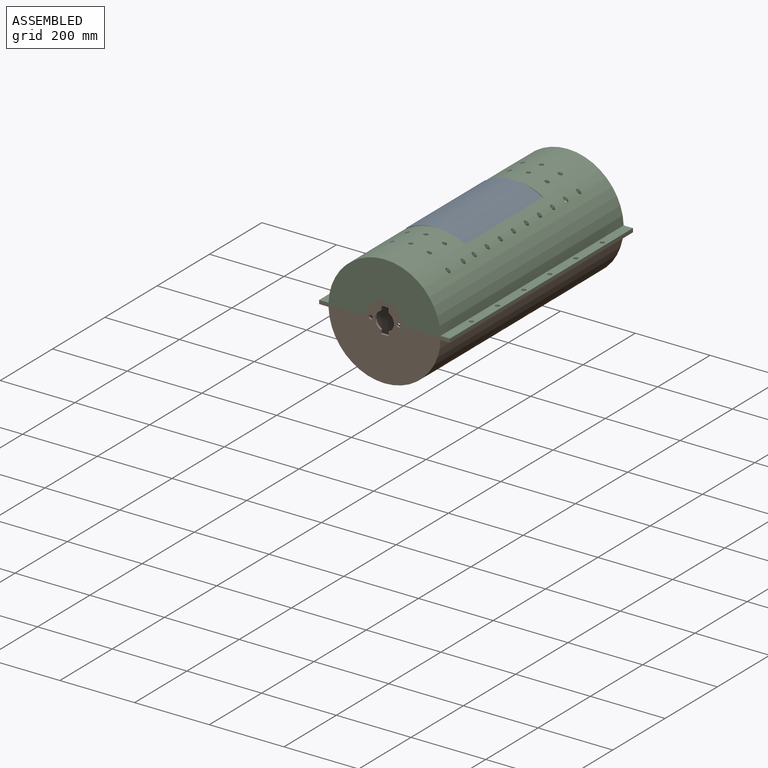
[diagram: assembled view]
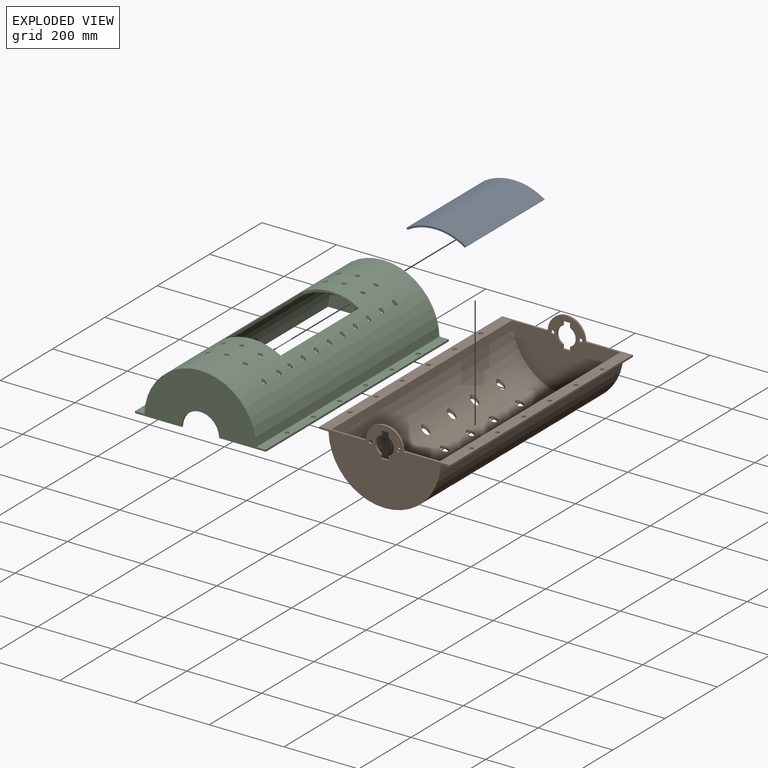
[diagram: exploded view]
GUIDED TOUR — MATED ASSEMBLY (Onshape document 8fc207bb77f288339ac32496, AutoMate assembly 8fc207bb77f288339ac32496_ca5e0ae2472331b184e13861_5e219c9798a006317e73f530_default)

This assembly has 3 components, labeled P0..P2 below (a component is one placed occurrence of a part; the same part can appear more than once), held together by 2 mates. A mate is a constraint between two components; its type names the relative motion it leaves free:
  PARALLEL — keeps the two listed directions parallel.
Axis/direction vectors are unit vectors and 'through' points are millimeter coordinates, both in the assembly's world frame.

MATES
  1. PARALLEL "Parallel 2": P0 <-> P2, direction (0.000, 1.000, 0.000) through (-39.52, -130.71, 75.05) mm
  2. PARALLEL "Parallel 1": P2 <-> P1, direction (0.000, 0.000, -1.000) through (-271.68, -130.71, -46.89) mm

ASSEMBLY ORDER
  1. P0 — the base component [order verified]
  2. P2 [order verified]
  3. P1 [order verified]
Order-tag legend:
  [order verified] — this step's position reverses a verified removal order: the component was checked to insert without passing through the ones already placed.

Of the 3 components, 3 carry the full construction recipe — the FeatureScript program that regenerates the part's solid from scratch; the rest are supplied as boundary geometry only.
Each toured component is shown spotlighted twice — in the assembled view, then in the exploded view, where a leader line traces a displaced component back to its assembled socket (saturated green if recipe-attached, orange if geometry-only; every other component desaturated gray) — followed by its recipe or geometry summary and the mates that hold it.
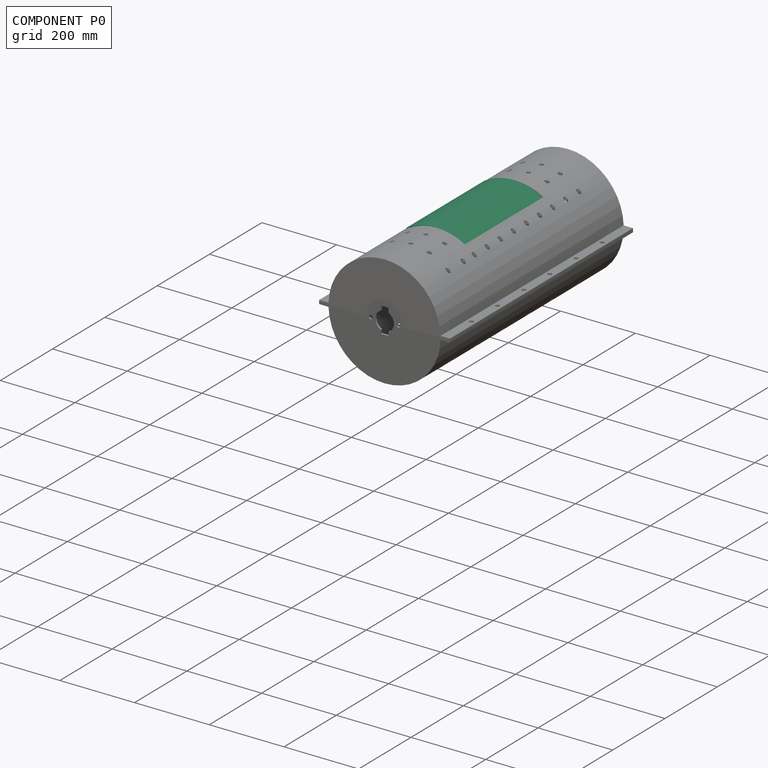
[diagram: component P0 — assembled]
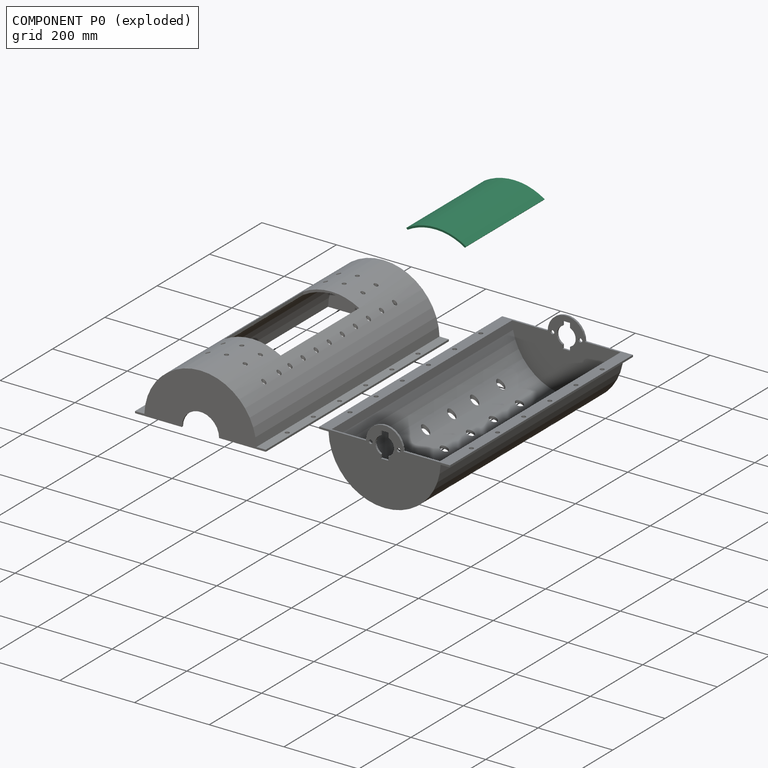
[diagram: component P0 — exploded]
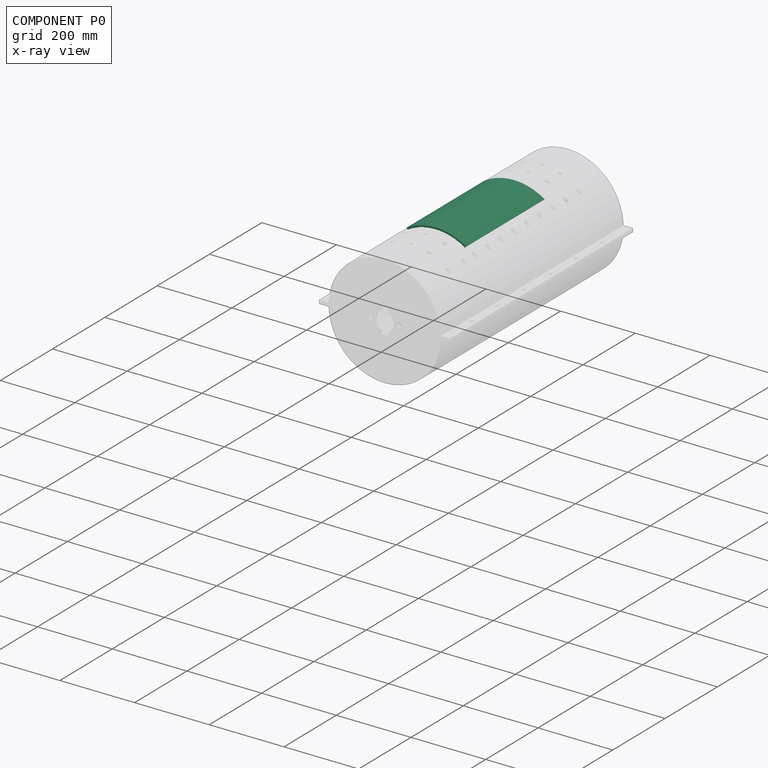
[diagram: component P0 — x-ray view]
COMPONENT P0 — recipe-attached (CADFS 00328720, mesh-verified: the recipe's output STEP matches this component's geometry to below the mesh-comparison resolution (tessellation chordal tolerance ~0.512 mm)).
Held by: PARALLEL mate "Parallel 2" to P2.
Construction recipe (FeatureScript — the CAD program that rebuilds this solid; sketch coordinates are in the units given by the * unit suffixes, e.g. mm):

FeatureScript 1511;
import(path : "onshape/std/geometry.fs", version : "1511.0");
import(path : "onshape/std/common.fs", version : "1511.0");
const mm = millimeter;
const VERTEX = EntityType.VERTEX;
const EDGE = EntityType.EDGE;
const FACE = EntityType.FACE;
const BODY = EntityType.BODY;
function v(x, y){return vector(x, y);}
function OD(order){return orderDisambiguation(order);}
function OSD(set){return originalSetDisambiguation(set);}
function TD(topology){return topologyDisambiguation(topology);}
function TDD(query){return trueDependencyDisambiguation(query);}
function sQuery(a, b, c) {return sketchEntityQuery(a, b, c);}

annotation { "Feature Type Name" : "Feature", "Feature Type Description" : "" }
export const myFeature = defineFeature(function(context is Context, id is Id, definition is map)
    precondition{}
    {
        {
            var Q0;
            Q0=qCreatedBy(makeId("Front.planeOp"),FACE);
            var sketch = newSketch(context, id + "F0", { "sketchPlane" : qUnion([Q0])});
            skArc(sketch, "E0", {"start": v(82.27, 125.43) * mm, "mid": v(2.46, 149.98) * mm, "end": v(-78.11, 128.06) * mm});
            skArc(sketch, "E1", {"start": v(78.6, 121.85) * mm, "mid": v(2.12, 144.98) * mm, "end": v(-75, 124.1) * mm});
            skLineSegment(sketch, "E2", {"start": v(78.6, 121.85) * mm, "end": v(82.27, 125.43) * mm});
            skLineSegment(sketch, "E3", {"start": v(-75, 124.1) * mm, "end": v(-78.11, 128.06) * mm});
            skSolve(sketch);
        }
        {
            var Q0;
            Q0 = qSketchRegion(id + "F0", true);
            extrude(context, id + "F1", {"entities" : qUnion([Q0]), "depth" : 300 * mm});
        }
    });
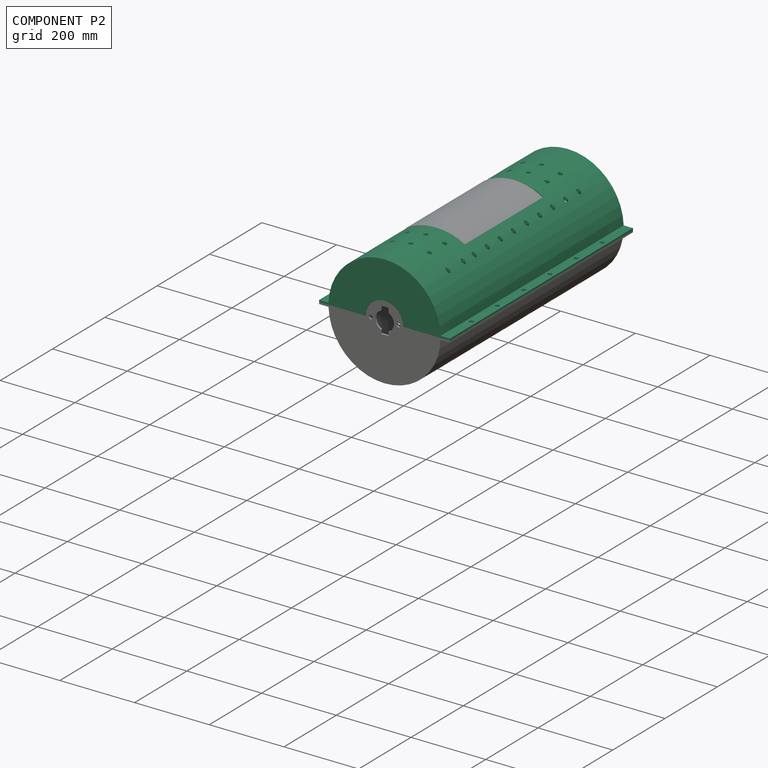
[diagram: component P2 — assembled]
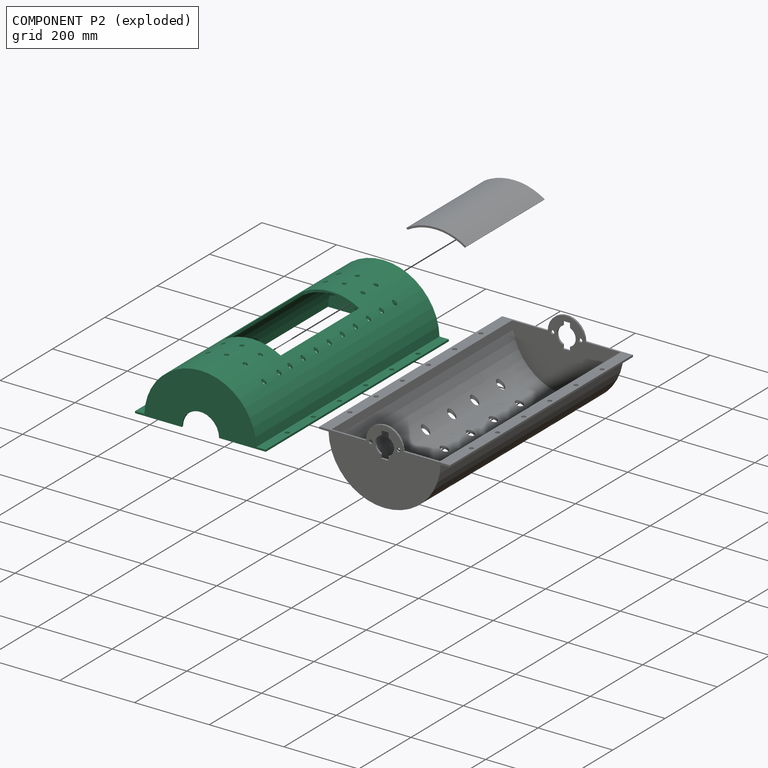
[diagram: component P2 — exploded]
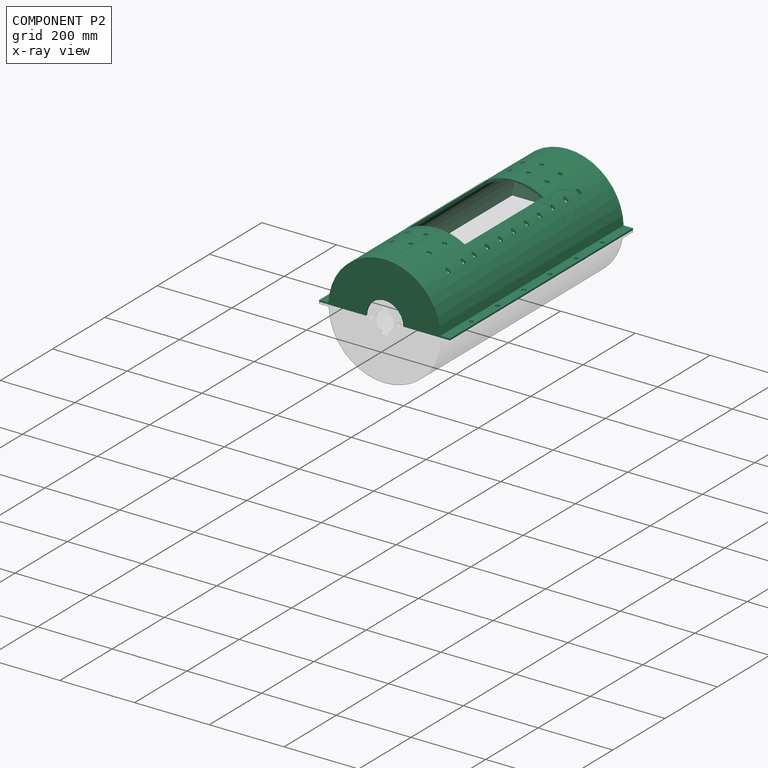
[diagram: component P2 — x-ray view]
COMPONENT P2 — recipe-attached (CADFS 00328721, mesh-verified: the recipe's output STEP matches this component's geometry to below the mesh-comparison resolution (tessellation chordal tolerance ~1.2 mm)).
Held by: PARALLEL mate "Parallel 2" to P0; PARALLEL mate "Parallel 1" to P1.
Construction recipe (FeatureScript — the CAD program that rebuilds this solid; sketch coordinates are in the units given by the * unit suffixes, e.g. mm):

FeatureScript 1511;
import(path : "onshape/std/geometry.fs", version : "1511.0");
import(path : "onshape/std/common.fs", version : "1511.0");
const mm = millimeter;
const VERTEX = EntityType.VERTEX;
const EDGE = EntityType.EDGE;
const FACE = EntityType.FACE;
const BODY = EntityType.BODY;
function v(x, y){return vector(x, y);}
function OD(order){return orderDisambiguation(order);}
function OSD(set){return originalSetDisambiguation(set);}
function TD(topology){return topologyDisambiguation(topology);}
function TDD(query){return trueDependencyDisambiguation(query);}
function sQuery(a, b, c) {return sketchEntityQuery(a, b, c);}

annotation { "Feature Type Name" : "Feature", "Feature Type Description" : "" }
export const myFeature = defineFeature(function(context is Context, id is Id, definition is map)
    precondition{}
    {
        {
            var Q0;
            Q0=qCreatedBy(makeId("Front.planeOp"),FACE);
            var sketch = newSketch(context, id + "F0", { "sketchPlane" : qUnion([Q0])});
            skLineSegment(sketch, "E0.bottom", {"start": v(150, -75) * mm, "end": v(-150, -75) * mm});
            skLineSegment(sketch, "E0.top", {"start": v(150, 75) * mm, "end": v(50, 75) * mm});
            skLineSegment(sketch, "E0.left", {"start": v(150, -75) * mm, "end": v(150, 70) * mm});
            skLineSegment(sketch, "E0.right", {"start": v(-150, -75) * mm, "end": v(-150, 70) * mm});
            skPoint(sketch, "E0.middle", {"position": v(0, 0) * mm});
            skLineSegment(sketch, "E1", {"start": v(-150, 75) * mm, "end": v(-175, 75) * mm});
            skLineSegment(sketch, "E2", {"start": v(-175, 75) * mm, "end": v(-175, 70) * mm});
            skLineSegment(sketch, "E3", {"start": v(-175, 70) * mm, "end": v(-150, 70) * mm});
            skLineSegment(sketch, "E4", {"start": v(150, 75) * mm, "end": v(175, 75) * mm});
            skLineSegment(sketch, "E5", {"start": v(175, 75) * mm, "end": v(175, 70) * mm});
            skLineSegment(sketch, "E6", {"start": v(175, 70) * mm, "end": v(150, 70) * mm});
            skLineSegment(sketch, "E7.trimOffspring", {"start": v(-50, 75) * mm, "end": v(-150, 75) * mm});
            skPoint(sketch, "E8.center.orphan", {"position": v(0, 75) * mm});
            skLineSegment(sketch, "E9", {"start": v(-50, 75) * mm, "end": v(50, 75) * mm});
            skSolve(sketch);
        }
        {
            var Q0;
            Q0=makeQuery(id+"F0.imprint","IMPRINT",FACE,{"disambiguationData":[TD([[makeQuery(id+"F0.imprint","IMPRINT",EDGE,{"derivedFrom":sQuery(id+"F0.wireOp",EDGE,"E0.bottom")}),-1.0]])]});
            extrude(context, id + "F1", {"entities" : qUnion([Q0]), "depth" : 700 * mm});
        }
        {
            var Q0;
            Q0=makeQuery(id+"F1.opExtrude","SWEPT_FACE",FACE,{"disambiguationData":[OSD([sQuery(id+"F0.wireOp",EDGE,"E0.top"),sQuery(id+"F0.wireOp",EDGE,"E1"),sQuery(id+"F0.wireOp",EDGE,"E4"),sQuery(id+"F0.wireOp",EDGE,"E7.trimOffspring"),sQuery(id+"F0.wireOp",EDGE,"E9")])]});
            var sketch = newSketch(context, id + "F2", { "sketchPlane" : qUnion([Q0])});
            skLineSegment(sketch, "E10.bottom", {"start": v(145, -695) * mm, "end": v(-145, -695) * mm});
            skLineSegment(sketch, "E10.top", {"start": v(145, -5) * mm, "end": v(-145, -5) * mm});
            skLineSegment(sketch, "E10.left", {"start": v(145, -695) * mm, "end": v(145, -5) * mm});
            skLineSegment(sketch, "E10.right", {"start": v(-145, -695) * mm, "end": v(-145, -5) * mm});
            skPoint(sketch, "E10.middle", {"position": v(0, -350) * mm});
            skPoint(sketch, "E10.middle.positionSnap0", {"position": v(175, -350) * mm});
            skPoint(sketch, "E10.middle.positionSnap1", {"position": v(0, 0) * mm});
            skPoint(sketch, "E10.centerSnap0", {"position": v(175, -350) * mm});
            skPoint(sketch, "E10.centerSnap1", {"position": v(0, 0) * mm});
            skSolve(sketch);
        }
        {
            var Q0;
            Q0=makeQuery(id+"F2.imprint","IMPRINT",FACE,{"disambiguationData":[TD([[makeQuery(id+"F2.imprint","IMPRINT",EDGE,{"derivedFrom":sQuery(id+"F2.wireOp",EDGE,"E10.bottom")}),-1.0]])]});
            extrude(context, id + "F3", {"entities" : qUnion([Q0]), "operationType" : NewBodyOperationType.REMOVE, "oppositeDirection" : true, "depth" : 145 * mm});
        }
        {
            var Q0;
            Q0=makeQuery(id+"F1.opExtrude","SWEPT_FACE",FACE,{"disambiguationData":[OSD([sQuery(id+"F0.wireOp",EDGE,"E0.bottom")])]});
            var sketch = newSketch(context, id + "F4", { "sketchPlane" : qUnion([Q0])});
            skLineSegment(sketch, "E11.bottom", {"start": v(75, 500) * mm, "end": v(-75, 500) * mm});
            skLineSegment(sketch, "E11.top", {"start": v(75, 200) * mm, "end": v(-75, 200) * mm});
            skLineSegment(sketch, "E11.left", {"start": v(75, 500) * mm, "end": v(75, 200) * mm});
            skLineSegment(sketch, "E11.right", {"start": v(-75, 500) * mm, "end": v(-75, 200) * mm});
            skPoint(sketch, "E11.middle", {"position": v(0, 350) * mm});
            skPoint(sketch, "E11.middle.positionSnap0", {"position": v(-150, 350) * mm});
            skPoint(sketch, "E11.centerSnap0", {"position": v(-150, 350) * mm});
            skSolve(sketch);
        }
        {
            var Q0;
            Q0=makeQuery(id+"F4.imprint","IMPRINT",FACE,{"disambiguationData":[TD([[makeQuery(id+"F4.imprint","IMPRINT",EDGE,{"derivedFrom":sQuery(id+"F4.wireOp",EDGE,"E11.bottom")}),1.0]])]});
            extrude(context, id + "F5", {"entities" : qUnion([Q0]), "operationType" : NewBodyOperationType.REMOVE, "oppositeDirection" : true, "depth" : 25 * mm});
        }
        {
            var Q0;
            Q0=makeQuery(id+"F1.opExtrude","SWEPT_FACE",FACE,{"disambiguationData":[OSD([sQuery(id+"F0.wireOp",EDGE,"E0.bottom")])]});
            var sketch = newSketch(context, id + "F6", { "sketchPlane" : qUnion([Q0])});
            skCircle(sketch, "E12", {"center": v(-100, 600) * mm, "radius": 10 * mm});
            skCircle(sketch, "E13", {"center": v(-50, 600) * mm, "radius": 10 * mm});
            skCircle(sketch, "E14", {"center": v(0, 600) * mm, "radius": 10 * mm});
            skCircle(sketch, "E15", {"center": v(50, 600) * mm, "radius": 10 * mm});
            skCircle(sketch, "E16", {"center": v(100, 600) * mm, "radius": 10 * mm});
            skCircle(sketch, "E17", {"center": v(-100, 500) * mm, "radius": 10 * mm});
            skCircle(sketch, "E18", {"center": v(100, 500) * mm, "radius": 10 * mm});
            skCircle(sketch, "E19", {"center": v(-50, 541.91) * mm, "radius": 10 * mm});
            skCircle(sketch, "E20", {"center": v(0, 541.91) * mm, "radius": 10 * mm});
            skCircle(sketch, "E21", {"center": v(50, 541.91) * mm, "radius": 10 * mm});
            skCircle(sketch, "E22", {"center": v(100, 541.91) * mm, "radius": 10 * mm});
            skCircle(sketch, "E23", {"center": v(-100, 541.91) * mm, "radius": 10 * mm});
            skCircle(sketch, "E24", {"center": v(100, 450) * mm, "radius": 10 * mm});
            skCircle(sketch, "E25", {"center": v(100, 400) * mm, "radius": 10 * mm});
            skCircle(sketch, "E26", {"center": v(100, 350) * mm, "radius": 10 * mm});
            skCircle(sketch, "E27", {"center": v(100, 300) * mm, "radius": 10 * mm});
            skPoint(sketch, "E28.center.orphan", {"position": v(100, 250) * mm});
            skCircle(sketch, "E29", {"center": v(100, 250) * mm, "radius": 10 * mm});
            skCircle(sketch, "E30", {"center": v(-100, 450) * mm, "radius": 10 * mm});
            skCircle(sketch, "E31", {"center": v(-100, 400) * mm, "radius": 10 * mm});
            skCircle(sketch, "E32", {"center": v(-100, 350) * mm, "radius": 10 * mm});
            skPoint(sketch, "E32.centerSnap0", {"position": v(-75, 350) * mm});
            skCircle(sketch, "E33", {"center": v(-100, 300) * mm, "radius": 10 * mm});
            skCircle(sketch, "E34", {"center": v(-100, 250) * mm, "radius": 10 * mm});
            skCircle(sketch, "E35", {"center": v(-100, 200) * mm, "radius": 10 * mm});
            skCircle(sketch, "E36", {"center": v(100, 200) * mm, "radius": 10 * mm});
            skCircle(sketch, "E37", {"center": v(-100, 150) * mm, "radius": 10 * mm});
            skCircle(sketch, "E38", {"center": v(-50, 150) * mm, "radius": 10 * mm});
            skCircle(sketch, "E39", {"center": v(0, 150) * mm, "radius": 10 * mm});
            skPoint(sketch, "E39.centerSnap0", {"position": v(0, 200) * mm});
            skCircle(sketch, "E40", {"center": v(50, 150) * mm, "radius": 10 * mm});
            skCircle(sketch, "E41", {"center": v(100, 150) * mm, "radius": 10 * mm});
            skCircle(sketch, "E42", {"center": v(-100, 100) * mm, "radius": 10 * mm});
            skCircle(sketch, "E43", {"center": v(-50, 100) * mm, "radius": 10 * mm});
            skCircle(sketch, "E44", {"center": v(0, 100) * mm, "radius": 10 * mm});
            skCircle(sketch, "E45", {"center": v(50, 100) * mm, "radius": 10 * mm});
            skCircle(sketch, "E46", {"center": v(100, 100) * mm, "radius": 10 * mm});
            skSolve(sketch);
        }
        {
            var Q0;
            Q0=sQuery(id+"F6.wireOp",VERTEX,"E12.center");
            var Q1;
            Q1=sQuery(id+"F6.wireOp",VERTEX,"E13.center");
            var Q2;
            Q2=sQuery(id+"F6.wireOp",VERTEX,"E14.center");
            var Q3;
            Q3=sQuery(id+"F6.wireOp",VERTEX,"E15.center");
            var Q4;
            Q4=sQuery(id+"F6.wireOp",VERTEX,"E16.center");
            var Q5;
            Q5=sQuery(id+"F6.wireOp",VERTEX,"E22.center");
            var Q6;
            Q6=sQuery(id+"F6.wireOp",VERTEX,"E21.center");
            var Q7;
            Q7=sQuery(id+"F6.wireOp",VERTEX,"E20.center");
            var Q8;
            Q8=sQuery(id+"F6.wireOp",VERTEX,"E19.center");
            var Q9;
            Q9=sQuery(id+"F6.wireOp",VERTEX,"E23.center");
            var Q10;
            Q10=sQuery(id+"F6.wireOp",VERTEX,"E17.center");
            var Q11;
            Q11=sQuery(id+"F6.wireOp",VERTEX,"E30.center");
            var Q12;
            Q12=sQuery(id+"F6.wireOp",VERTEX,"E31.center");
            var Q13;
            Q13=sQuery(id+"F6.wireOp",VERTEX,"E32.center");
            var Q14;
            Q14=sQuery(id+"F6.wireOp",VERTEX,"E33.center");
            var Q15;
            Q15=sQuery(id+"F6.wireOp",VERTEX,"E34.center");
            var Q16;
            Q16=sQuery(id+"F6.wireOp",VERTEX,"E35.center");
            var Q17;
            Q17=sQuery(id+"F6.wireOp",VERTEX,"E36.center");
            var Q18;
            Q18=sQuery(id+"F6.wireOp",VERTEX,"E28.center.orphan");
            var Q19;
            Q19=sQuery(id+"F6.wireOp",VERTEX,"E27.center");
            var Q20;
            Q20=sQuery(id+"F6.wireOp",VERTEX,"E26.center");
            var Q21;
            Q21=sQuery(id+"F6.wireOp",VERTEX,"E25.center");
            var Q22;
            Q22=sQuery(id+"F6.wireOp",VERTEX,"E24.center");
            var Q23;
            Q23=sQuery(id+"F6.wireOp",VERTEX,"E18.center");
            var Q24;
            Q24=sQuery(id+"F6.wireOp",VERTEX,"E41.center");
            var Q25;
            Q25=sQuery(id+"F6.wireOp",VERTEX,"E40.center");
            var Q26;
            Q26=sQuery(id+"F6.wireOp",VERTEX,"E39.center");
            var Q27;
            Q27=sQuery(id+"F6.wireOp",VERTEX,"E38.center");
            var Q28;
            Q28=sQuery(id+"F6.wireOp",VERTEX,"E37.center");
            var Q29;
            Q29=sQuery(id+"F6.wireOp",VERTEX,"E42.center");
            var Q30;
            Q30=sQuery(id+"F6.wireOp",VERTEX,"E43.center");
            var Q31;
            Q31=sQuery(id+"F6.wireOp",VERTEX,"E44.center");
            var Q32;
            Q32=sQuery(id+"F6.wireOp",VERTEX,"E45.center");
            var Q33;
            Q33=sQuery(id+"F6.wireOp",VERTEX,"E46.center");
            var Q34;
            Q34=makeQuery(id+"F1.opExtrude","SWEPT_BODY",BODY,{"disambiguationData":[OSD([sQuery(id+"F0.wireOp",EDGE,"E0.bottom"),sQuery(id+"F0.wireOp",EDGE,"E0.top"),sQuery(id+"F0.wireOp",EDGE,"E0.left"),sQuery(id+"F0.wireOp",EDGE,"E0.right"),sQuery(id+"F0.wireOp",EDGE,"E1"),sQuery(id+"F0.wireOp",EDGE,"E2"),sQuery(id+"F0.wireOp",EDGE,"E3"),sQuery(id+"F0.wireOp",EDGE,"E4"),sQuery(id+"F0.wireOp",EDGE,"E5"),sQuery(id+"F0.wireOp",EDGE,"E6"),sQuery(id+"F0.wireOp",EDGE,"E7.trimOffspring"),sQuery(id+"F0.wireOp",EDGE,"E9")])]});
            hole(context, id + "F7", {"style" : HoleStyle.SIMPLE, "endStyle" : HoleEndStyle.THROUGH, "standardTappedOrClearance" : lookupTablePath({ "standard" : "ISO", "fit" : "Normal", "size" : "M10", "type" : "Clearance" }), "standardBlindInLast" : lookupTablePath({ "fit" : "Standard", "standard" : "ISO", "size" : "M10", "type" : "Clearance" }), "holeDiameter" : 11 * mm, "isTappedThrough" : true, "tappedDepth" : 14 * mm, "tapClearance" : 3, "locations" : qUnion([Q0, Q1, Q2, Q3, Q4, Q5, Q6, Q7, Q8, Q9, Q10, Q11, Q12, Q13, Q14, Q15, Q16, Q17, Q18, Q19, Q20, Q21, Q22, Q23, Q24, Q25, Q26, Q27, Q28, Q29, Q30, Q31, Q32, Q33]), "scope" : qUnion([Q34])});
        }
        {
            var Q0;
            Q0=makeQuery(id+"F1.opExtrude","SWEPT_FACE",FACE,{"disambiguationData":[OSD([sQuery(id+"F0.wireOp",EDGE,"E0.top"),sQuery(id+"F0.wireOp",EDGE,"E1"),sQuery(id+"F0.wireOp",EDGE,"E4"),sQuery(id+"F0.wireOp",EDGE,"E7.trimOffspring"),sQuery(id+"F0.wireOp",EDGE,"E9")])]});
            var sketch = newSketch(context, id + "F8", { "sketchPlane" : qUnion([Q0])});
            skCircle(sketch, "E47", {"center": v(162.5, -100) * mm, "radius": 5 * mm});
            skCircle(sketch, "E48", {"center": v(162.5, -200) * mm, "radius": 5 * mm});
            skCircle(sketch, "E49", {"center": v(162.5, -300) * mm, "radius": 5 * mm});
            skCircle(sketch, "E50", {"center": v(162.5, -400) * mm, "radius": 5 * mm});
            skCircle(sketch, "E51", {"center": v(162.5, -500) * mm, "radius": 5 * mm});
            skCircle(sketch, "E52", {"center": v(162.5, -600) * mm, "radius": 5 * mm});
            skSolve(sketch);
        }
        {
            var Q0;
            Q0=sQuery(id+"F8.wireOp",VERTEX,"E47.center");
            var Q1;
            Q1=sQuery(id+"F8.wireOp",VERTEX,"E48.center");
            var Q2;
            Q2=sQuery(id+"F8.wireOp",VERTEX,"E49.center");
            var Q3;
            Q3=sQuery(id+"F8.wireOp",VERTEX,"E50.center");
            var Q4;
            Q4=sQuery(id+"F8.wireOp",VERTEX,"E51.center");
            var Q5;
            Q5=sQuery(id+"F8.wireOp",VERTEX,"E52.center");
            var Q6;
            Q6=makeQuery(id+"F1.opExtrude","SWEPT_BODY",BODY,{"disambiguationData":[OSD([sQuery(id+"F0.wireOp",EDGE,"E0.bottom"),sQuery(id+"F0.wireOp",EDGE,"E0.top"),sQuery(id+"F0.wireOp",EDGE,"E0.left"),sQuery(id+"F0.wireOp",EDGE,"E0.right"),sQuery(id+"F0.wireOp",EDGE,"E1"),sQuery(id+"F0.wireOp",EDGE,"E2"),sQuery(id+"F0.wireOp",EDGE,"E3"),sQuery(id+"F0.wireOp",EDGE,"E4"),sQuery(id+"F0.wireOp",EDGE,"E5"),sQuery(id+"F0.wireOp",EDGE,"E6"),sQuery(id+"F0.wireOp",EDGE,"E7.trimOffspring"),sQuery(id+"F0.wireOp",EDGE,"E9")])]});
            hole(context, id + "F9", {"style" : HoleStyle.SIMPLE, "endStyle" : HoleEndStyle.THROUGH, "standardTappedOrClearance" : lookupTablePath({ "standard" : "ISO", "fit" : "Normal", "size" : "M10", "type" : "Clearance" }), "standardBlindInLast" : lookupTablePath({ "fit" : "Standard", "standard" : "ISO", "size" : "M10", "type" : "Clearance" }), "holeDiameter" : 11 * mm, "isTappedThrough" : true, "tappedDepth" : 14 * mm, "tapClearance" : 3, "locations" : qUnion([Q0, Q1, Q2, Q3, Q4, Q5]), "scope" : qUnion([Q6])});
        }
        {
            var Q0;
            Q0=makeQuery(id+"F1.opExtrude","SWEPT_FACE",FACE,{"disambiguationData":[OSD([sQuery(id+"F0.wireOp",EDGE,"E0.top"),sQuery(id+"F0.wireOp",EDGE,"E1"),sQuery(id+"F0.wireOp",EDGE,"E4"),sQuery(id+"F0.wireOp",EDGE,"E7.trimOffspring"),sQuery(id+"F0.wireOp",EDGE,"E9")])]});
            var sketch = newSketch(context, id + "F10", { "sketchPlane" : qUnion([Q0])});
            skCircle(sketch, "E53", {"center": v(-162.5, -100) * mm, "radius": 5 * mm});
            skCircle(sketch, "E54", {"center": v(-162.5, -200) * mm, "radius": 5 * mm});
            skCircle(sketch, "E55", {"center": v(-162.5, -300) * mm, "radius": 5 * mm});
            skCircle(sketch, "E56", {"center": v(-162.5, -400) * mm, "radius": 5 * mm});
            skCircle(sketch, "E57", {"center": v(-162.5, -500) * mm, "radius": 5 * mm});
            skCircle(sketch, "E58", {"center": v(-162.5, -600) * mm, "radius": 5 * mm});
            skSolve(sketch);
        }
        {
            var Q0;
            Q0=sQuery(id+"F10.wireOp",VERTEX,"E53.center");
            var Q1;
            Q1=sQuery(id+"F10.wireOp",VERTEX,"E54.center");
            var Q2;
            Q2=sQuery(id+"F10.wireOp",VERTEX,"E55.center");
            var Q3;
            Q3=sQuery(id+"F10.wireOp",VERTEX,"E56.center");
            var Q4;
            Q4=sQuery(id+"F10.wireOp",VERTEX,"E57.center");
            var Q5;
            Q5=sQuery(id+"F10.wireOp",VERTEX,"E58.center");
            var Q6;
            Q6=makeQuery(id+"F1.opExtrude","SWEPT_BODY",BODY,{"disambiguationData":[OSD([sQuery(id+"F0.wireOp",EDGE,"E0.bottom"),sQuery(id+"F0.wireOp",EDGE,"E0.top"),sQuery(id+"F0.wireOp",EDGE,"E0.left"),sQuery(id+"F0.wireOp",EDGE,"E0.right"),sQuery(id+"F0.wireOp",EDGE,"E1"),sQuery(id+"F0.wireOp",EDGE,"E2"),sQuery(id+"F0.wireOp",EDGE,"E3"),sQuery(id+"F0.wireOp",EDGE,"E4"),sQuery(id+"F0.wireOp",EDGE,"E5"),sQuery(id+"F0.wireOp",EDGE,"E6"),sQuery(id+"F0.wireOp",EDGE,"E7.trimOffspring"),sQuery(id+"F0.wireOp",EDGE,"E9")])]});
            hole(context, id + "F11", {"style" : HoleStyle.SIMPLE, "endStyle" : HoleEndStyle.THROUGH, "standardTappedOrClearance" : lookupTablePath({ "standard" : "ISO", "fit" : "Normal", "size" : "M10", "type" : "Clearance" }), "standardBlindInLast" : lookupTablePath({ "fit" : "Standard", "standard" : "ISO", "size" : "M10", "type" : "Clearance" }), "holeDiameter" : 11 * mm, "isTappedThrough" : true, "tappedDepth" : 14 * mm, "tapClearance" : 3, "locations" : qUnion([Q0, Q1, Q2, Q3, Q4, Q5]), "scope" : qUnion([Q6])});
        }
        {
            var Q0;
            Q0=makeQuery(id+"F3.boolean.opBoolean","COPY",EDGE,{"derivedFrom":makeQuery(id+"F3.opExtrude","CAP_EDGE",EDGE,{"disambiguationData":[OSD([sQuery(id+"F2.wireOp",EDGE,"E10.right")])],"isStart":false})});
            var Q1;
            Q1=makeQuery(id+"F3.boolean.opBoolean","COPY",EDGE,{"derivedFrom":makeQuery(id+"F3.opExtrude","CAP_EDGE",EDGE,{"disambiguationData":[OSD([sQuery(id+"F2.wireOp",EDGE,"E10.left")])],"isStart":false})});
            fillet(context, id + "F12", {"entities" : qUnion([Q0, Q1]), "radius" : 150 * mm, "tangentPropagation" : true, "allowEdgeOverflow" : false});
        }
        {
            var Q0;
            Q0=makeQuery(id+"F1.opExtrude","SWEPT_EDGE",EDGE,{"disambiguationData":[OSD([sQuery(id+"F0.wireOp",EDGE,"E0.bottom"),sQuery(id+"F0.wireOp",EDGE,"E0.left")])]});
            var Q1;
            Q1=makeQuery(id+"F1.opExtrude","SWEPT_EDGE",EDGE,{"disambiguationData":[OSD([sQuery(id+"F0.wireOp",EDGE,"E0.bottom"),sQuery(id+"F0.wireOp",EDGE,"E0.right")])]});
            fillet(context, id + "F13", {"entities" : qUnion([Q0, Q1]), "radius" : 150 * mm, "tangentPropagation" : true, "allowEdgeOverflow" : false});
        }
        {
            var Q0;
            Q0=makeQuery(id+"F1.opExtrude","CAP_FACE",FACE,{"disambiguationData":[OSD([sQuery(id+"F0.wireOp",EDGE,"E0.bottom"),sQuery(id+"F0.wireOp",EDGE,"E0.top"),sQuery(id+"F0.wireOp",EDGE,"E0.left"),sQuery(id+"F0.wireOp",EDGE,"E0.right"),sQuery(id+"F0.wireOp",EDGE,"E1"),sQuery(id+"F0.wireOp",EDGE,"E2"),sQuery(id+"F0.wireOp",EDGE,"E3"),sQuery(id+"F0.wireOp",EDGE,"E4"),sQuery(id+"F0.wireOp",EDGE,"E5"),sQuery(id+"F0.wireOp",EDGE,"E6"),sQuery(id+"F0.wireOp",EDGE,"E7.trimOffspring"),sQuery(id+"F0.wireOp",EDGE,"E9")])],"isStart":true});
            var sketch = newSketch(context, id + "F14", { "sketchPlane" : qUnion([Q0])});
            skCircle(sketch, "E59", {"center": v(0.08, 75) * mm, "radius": 50 * mm});
            skSolve(sketch);
        }
        {
            var Q0;
            {var subQ0=sQuery(id+"F14.wireOp",EDGE,"E59");var subQ1=makeQuery(id+"F1.opExtrude","CAP_EDGE",EDGE,{"disambiguationData":[OSD([sQuery(id+"F0.wireOp",EDGE,"E0.top"),sQuery(id+"F0.wireOp",EDGE,"E1"),sQuery(id+"F0.wireOp",EDGE,"E4"),sQuery(id+"F0.wireOp",EDGE,"E7.trimOffspring"),sQuery(id+"F0.wireOp",EDGE,"E9")])],"isStart":true});var subQ2=makeQuery(id+"F14.imprint","INTERSECT",VERTEX,{"disambiguationData":[OD(0.0)],"derivedFrom":[subQ1,subQ0]});Q0=makeQuery(id+"F14.imprint","IMPRINT",FACE,{"disambiguationData":[TD([[makeQuery(id+"F14.imprint","IMPRINT",EDGE,{"disambiguationData":[TD([[subQ2,-1.0]])],"derivedFrom":subQ0}),1.0]])]});}
            var Q1;
            {var subQ0=sQuery(id+"F14.wireOp",EDGE,"E59");var subQ1=makeQuery(id+"F1.opExtrude","CAP_EDGE",EDGE,{"disambiguationData":[OSD([sQuery(id+"F0.wireOp",EDGE,"E0.top"),sQuery(id+"F0.wireOp",EDGE,"E1"),sQuery(id+"F0.wireOp",EDGE,"E4"),sQuery(id+"F0.wireOp",EDGE,"E7.trimOffspring"),sQuery(id+"F0.wireOp",EDGE,"E9")])],"isStart":true});var subQ2=makeQuery(id+"F14.imprint","INTERSECT",VERTEX,{"disambiguationData":[OD(0.0)],"derivedFrom":[subQ1,subQ0]});Q1=makeQuery(id+"F14.imprint","IMPRINT",FACE,{"disambiguationData":[TD([[makeQuery(id+"F14.imprint","IMPRINT",EDGE,{"disambiguationData":[TD([[subQ2,1.0]])],"derivedFrom":subQ0}),1.0]])]});}
            extrude(context, id + "F15", {"entities" : qUnion([Q0, Q1]), "operationType" : NewBodyOperationType.REMOVE, "oppositeDirection" : true, "depth" : 700 * mm});
        }
    });
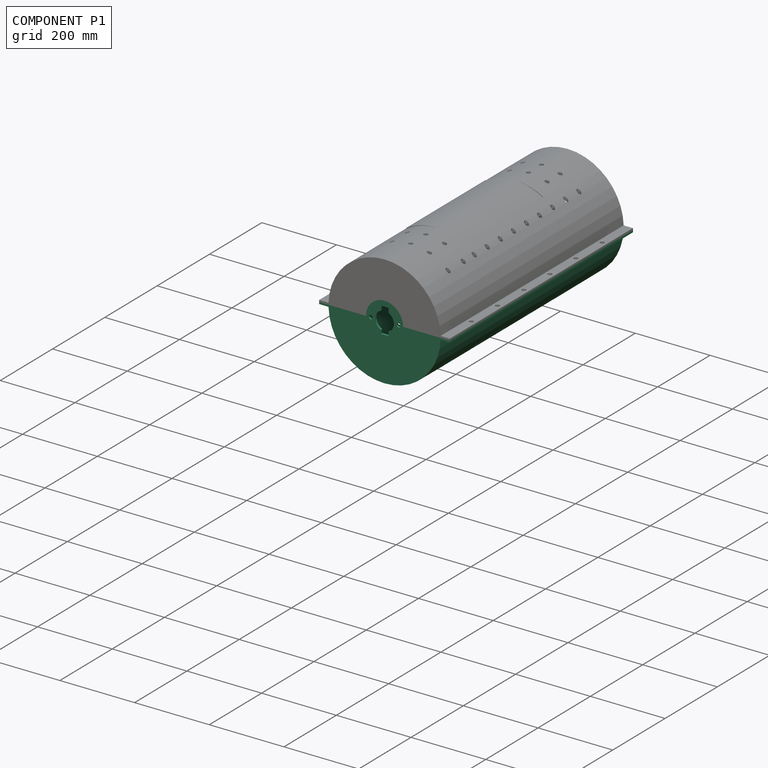
[diagram: component P1 — assembled]
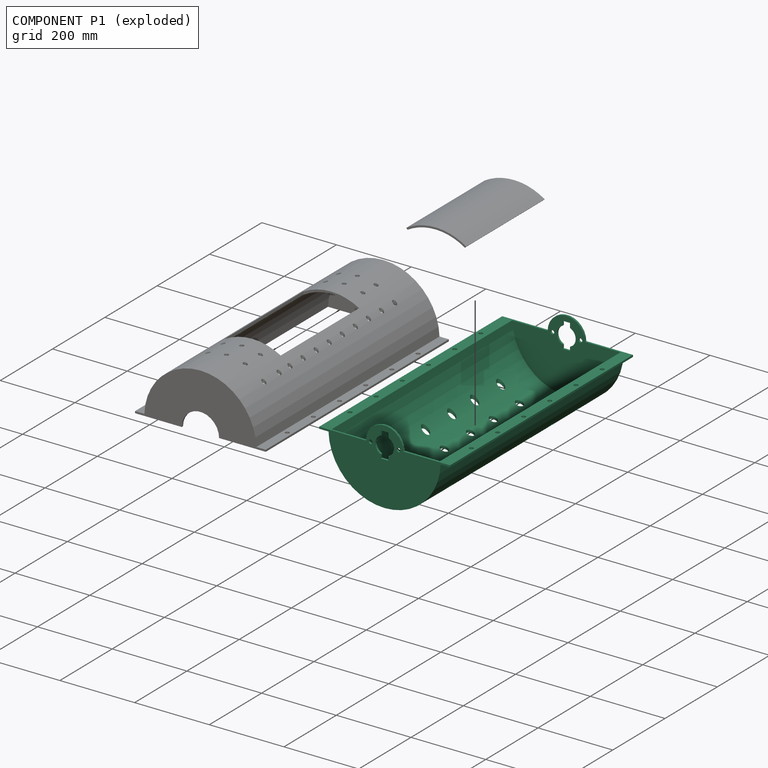
[diagram: component P1 — exploded]
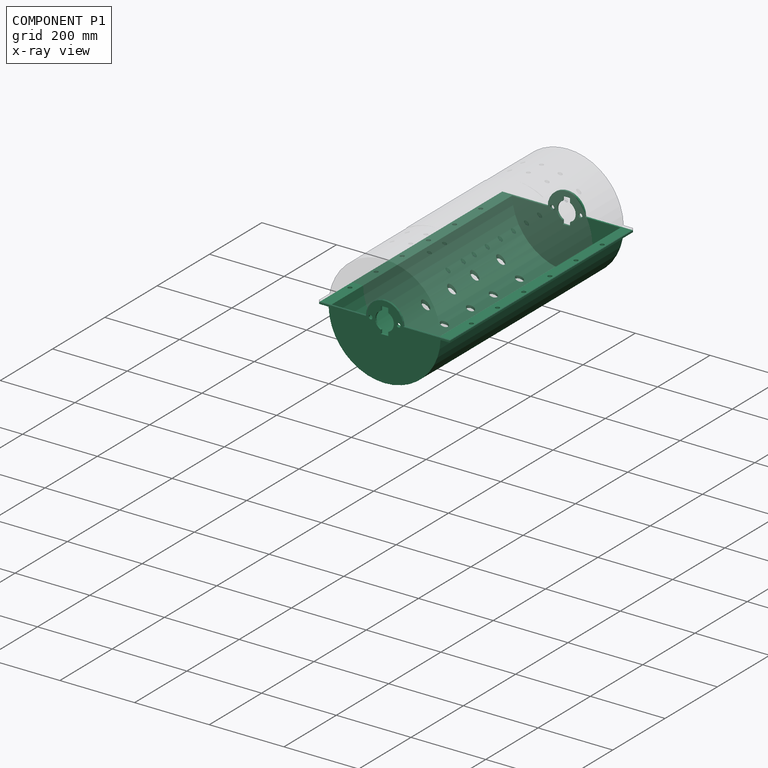
[diagram: component P1 — x-ray view]
COMPONENT P1 — recipe-attached (CADFS 00328722, mesh-verified: the recipe's output STEP matches this component's geometry to below the mesh-comparison resolution (tessellation chordal tolerance ~1.21 mm)).
Held by: PARALLEL mate "Parallel 1" to P2.
Construction recipe (FeatureScript — the CAD program that rebuilds this solid; sketch coordinates are in the units given by the * unit suffixes, e.g. mm):

FeatureScript 1511;
import(path : "onshape/std/geometry.fs", version : "1511.0");
import(path : "onshape/std/common.fs", version : "1511.0");
const mm = millimeter;
const VERTEX = EntityType.VERTEX;
const EDGE = EntityType.EDGE;
const FACE = EntityType.FACE;
const BODY = EntityType.BODY;
function v(x, y){return vector(x, y);}
function OD(order){return orderDisambiguation(order);}
function OSD(set){return originalSetDisambiguation(set);}
function TD(topology){return topologyDisambiguation(topology);}
function TDD(query){return trueDependencyDisambiguation(query);}
function sQuery(a, b, c) {return sketchEntityQuery(a, b, c);}

annotation { "Feature Type Name" : "Feature", "Feature Type Description" : "" }
export const myFeature = defineFeature(function(context is Context, id is Id, definition is map)
    precondition{}
    {
        {
            var Q0;
            Q0=qCreatedBy(makeId("Front.planeOp"),FACE);
            var sketch = newSketch(context, id + "F0", { "sketchPlane" : qUnion([Q0])});
            skLineSegment(sketch, "E0.bottom", {"start": v(150, -75) * mm, "end": v(-150, -75) * mm});
            skLineSegment(sketch, "E0.top", {"start": v(150, 75) * mm, "end": v(-150, 75) * mm});
            skLineSegment(sketch, "E0.left", {"start": v(150, -75) * mm, "end": v(150, 70) * mm});
            skLineSegment(sketch, "E0.right", {"start": v(-150, -75) * mm, "end": v(-150, 70) * mm});
            skPoint(sketch, "E0.middle", {"position": v(0, 0) * mm});
            skLineSegment(sketch, "E1", {"start": v(-150, 75) * mm, "end": v(-175, 75) * mm});
            skLineSegment(sketch, "E2", {"start": v(-175, 75) * mm, "end": v(-175, 70) * mm});
            skLineSegment(sketch, "E3", {"start": v(-175, 70) * mm, "end": v(-150, 70) * mm});
            skLineSegment(sketch, "E4", {"start": v(150, 75) * mm, "end": v(175, 75) * mm});
            skLineSegment(sketch, "E5", {"start": v(175, 75) * mm, "end": v(175, 70) * mm});
            skLineSegment(sketch, "E6", {"start": v(175, 70) * mm, "end": v(150, 70) * mm});
            skLineSegment(sketch, "E7.bottom", {"start": v(50, 125) * mm, "end": v(-50, 125) * mm});
            skLineSegment(sketch, "E7.left", {"start": v(50, 125) * mm, "end": v(50, 75) * mm});
            skLineSegment(sketch, "E7.right", {"start": v(-50, 125) * mm, "end": v(-50, 75) * mm});
            skPoint(sketch, "E7.middle", {"position": v(0, 75) * mm});
            skPoint(sketch, "E8.orphan", {"position": v(50, 25) * mm});
            skPoint(sketch, "E9.orphan", {"position": v(-50, 25) * mm});
            skSolve(sketch);
        }
        {
            var Q0;
            Q0 = qSketchRegion(id + "F0", true);
            extrude(context, id + "F1", {"entities" : qUnion([Q0]), "depth" : 700 * mm});
        }
        {
            var Q0;
            Q0=makeQuery(id+"F1.opExtrude","SWEPT_FACE",FACE,{"disambiguationData":[OSD([sQuery(id+"F0.wireOp",EDGE,"E7.bottom")])]});
            var sketch = newSketch(context, id + "F2", { "sketchPlane" : qUnion([Q0])});
            skLineSegment(sketch, "E10.bottom", {"start": v(50, -695) * mm, "end": v(-50, -695) * mm});
            skLineSegment(sketch, "E10.top", {"start": v(50, -5) * mm, "end": v(-50, -5) * mm});
            skLineSegment(sketch, "E10.left", {"start": v(50, -695) * mm, "end": v(50, -5) * mm});
            skLineSegment(sketch, "E10.right", {"start": v(-50, -695) * mm, "end": v(-50, -5) * mm});
            skPoint(sketch, "E10.middle", {"position": v(0, -350) * mm});
            skPoint(sketch, "E10.middle.positionSnap0", {"position": v(0, -700) * mm});
            skPoint(sketch, "E10.middle.positionSnap1", {"position": v(50, -350) * mm});
            skPoint(sketch, "E10.centerSnap0", {"position": v(0, -700) * mm});
            skPoint(sketch, "E10.centerSnap1", {"position": v(50, -350) * mm});
            skSolve(sketch);
        }
        {
            var Q0;
            Q0=makeQuery(id+"F2.imprint","IMPRINT",FACE,{"disambiguationData":[TD([[makeQuery(id+"F2.imprint","IMPRINT",EDGE,{"derivedFrom":sQuery(id+"F2.wireOp",EDGE,"E10.bottom")}),-1.0]])]});
            extrude(context, id + "F3", {"entities" : qUnion([Q0]), "operationType" : NewBodyOperationType.REMOVE, "oppositeDirection" : true, "depth" : 50 * mm});
        }
        {
            var Q0;
            {var subQ0=sQuery(id+"F0.wireOp",EDGE,"E0.top");Q0=makeQuery(id+"F3.boolean.opBoolean","MERGE",FACE,{"derivedFrom":[makeQuery(id+"F1.opExtrude","SWEPT_FACE",FACE,{"disambiguationData":[OSD([subQ0,sQuery(id+"F0.wireOp",EDGE,"E4")])]}),makeQuery(id+"F1.opExtrude","SWEPT_FACE",FACE,{"disambiguationData":[OSD([subQ0,sQuery(id+"F0.wireOp",EDGE,"E1")])]}),makeQuery(id+"F3.opExtrude","CAP_FACE",FACE,{"disambiguationData":[OSD([sQuery(id+"F2.wireOp",EDGE,"E10.bottom"),sQuery(id+"F2.wireOp",EDGE,"E10.top"),sQuery(id+"F2.wireOp",EDGE,"E10.left"),sQuery(id+"F2.wireOp",EDGE,"E10.right")])],"isStart":false})]});}
            var sketch = newSketch(context, id + "F4", { "sketchPlane" : qUnion([Q0])});
            skLineSegment(sketch, "E11.bottom", {"start": v(145, -695) * mm, "end": v(-145, -695) * mm});
            skLineSegment(sketch, "E11.top", {"start": v(145, -5) * mm, "end": v(-145, -5) * mm});
            skLineSegment(sketch, "E11.left", {"start": v(145, -695) * mm, "end": v(145, -5) * mm});
            skLineSegment(sketch, "E11.right", {"start": v(-145, -695) * mm, "end": v(-145, -5) * mm});
            skPoint(sketch, "E11.middle", {"position": v(0, -350) * mm});
            skPoint(sketch, "E11.middle.positionSnap0", {"position": v(175, -350) * mm});
            skPoint(sketch, "E11.middle.positionSnap1", {"position": v(0, -5) * mm});
            skPoint(sketch, "E11.centerSnap0", {"position": v(175, -350) * mm});
            skPoint(sketch, "E11.centerSnap1", {"position": v(0, -5) * mm});
            skSolve(sketch);
        }
        {
            var Q0;
            Q0 = qSketchRegion(id + "F4", true);
            extrude(context, id + "F5", {"entities" : qUnion([Q0]), "operationType" : NewBodyOperationType.REMOVE, "oppositeDirection" : true, "depth" : 145 * mm});
        }
        {
            var Q0;
            Q0=makeQuery(id+"F1.opExtrude","SWEPT_FACE",FACE,{"disambiguationData":[OSD([sQuery(id+"F0.wireOp",EDGE,"E0.bottom")])]});
            var sketch = newSketch(context, id + "F6", { "sketchPlane" : qUnion([Q0])});
            skCircle(sketch, "E12", {"center": v(-100, 600) * mm, "radius": 10 * mm});
            skCircle(sketch, "E13", {"center": v(-50, 600) * mm, "radius": 10 * mm});
            skCircle(sketch, "E14", {"center": v(0, 600) * mm, "radius": 10 * mm});
            skCircle(sketch, "E15", {"center": v(50, 600) * mm, "radius": 10 * mm});
            skCircle(sketch, "E16", {"center": v(100, 600) * mm, "radius": 10 * mm});
            skCircle(sketch, "E17", {"center": v(100, 500) * mm, "radius": 10 * mm});
            skCircle(sketch, "E18", {"center": v(50, 500) * mm, "radius": 10 * mm});
            skCircle(sketch, "E19", {"center": v(0, 500) * mm, "radius": 10 * mm});
            skCircle(sketch, "E20", {"center": v(-50, 500) * mm, "radius": 10 * mm});
            skCircle(sketch, "E21", {"center": v(-100, 500) * mm, "radius": 10 * mm});
            skCircle(sketch, "E22", {"center": v(-100, 400) * mm, "radius": 10 * mm});
            skCircle(sketch, "E23", {"center": v(-50, 400) * mm, "radius": 10 * mm});
            skCircle(sketch, "E24", {"center": v(0, 400) * mm, "radius": 10 * mm});
            skCircle(sketch, "E25", {"center": v(50, 400) * mm, "radius": 10 * mm});
            skCircle(sketch, "E26", {"center": v(100, 400) * mm, "radius": 10 * mm});
            skCircle(sketch, "E27", {"center": v(-100, 300) * mm, "radius": 10 * mm});
            skCircle(sketch, "E28", {"center": v(-50, 300) * mm, "radius": 10 * mm});
            skCircle(sketch, "E29", {"center": v(0, 300) * mm, "radius": 10 * mm});
            skCircle(sketch, "E30", {"center": v(50, 300) * mm, "radius": 10 * mm});
            skCircle(sketch, "E31", {"center": v(100, 300) * mm, "radius": 10 * mm});
            skCircle(sketch, "E32", {"center": v(100, 212.68) * mm, "radius": 10 * mm});
            skCircle(sketch, "E33", {"center": v(50, 212.68) * mm, "radius": 10 * mm});
            skCircle(sketch, "E34", {"center": v(0, 212.68) * mm, "radius": 10 * mm});
            skCircle(sketch, "E35", {"center": v(-50, 212.68) * mm, "radius": 10 * mm});
            skCircle(sketch, "E36", {"center": v(-100, 212.68) * mm, "radius": 10 * mm});
            skCircle(sketch, "E37", {"center": v(-100, 112.68) * mm, "radius": 10 * mm});
            skCircle(sketch, "E38", {"center": v(-50, 112.68) * mm, "radius": 10 * mm});
            skCircle(sketch, "E39", {"center": v(0, 112.68) * mm, "radius": 10 * mm});
            skCircle(sketch, "E40", {"center": v(50, 112.68) * mm, "radius": 10 * mm});
            skCircle(sketch, "E41", {"center": v(100, 112.68) * mm, "radius": 10 * mm});
            skSolve(sketch);
        }
        {
            var Q0;
            Q0=makeQuery(id+"F5.boolean.opBoolean","COPY",EDGE,{"derivedFrom":makeQuery(id+"F5.opExtrude","CAP_EDGE",EDGE,{"disambiguationData":[OSD([sQuery(id+"F4.wireOp",EDGE,"E11.left")])],"isStart":false})});
            var Q1;
            Q1=makeQuery(id+"F5.boolean.opBoolean","COPY",EDGE,{"derivedFrom":makeQuery(id+"F5.opExtrude","CAP_EDGE",EDGE,{"disambiguationData":[OSD([sQuery(id+"F4.wireOp",EDGE,"E11.right")])],"isStart":false})});
            var Q2;
            Q2=makeQuery(id+"F1.opExtrude","SWEPT_EDGE",EDGE,{"disambiguationData":[OSD([sQuery(id+"F0.wireOp",EDGE,"E0.bottom"),sQuery(id+"F0.wireOp",EDGE,"E0.left")])]});
            var Q3;
            Q3=makeQuery(id+"F1.opExtrude","SWEPT_EDGE",EDGE,{"disambiguationData":[OSD([sQuery(id+"F0.wireOp",EDGE,"E0.bottom"),sQuery(id+"F0.wireOp",EDGE,"E0.right")])]});
            fillet(context, id + "F7", {"entities" : qUnion([Q0, Q1, Q2, Q3]), "radius" : 150 * mm, "tangentPropagation" : true, "allowEdgeOverflow" : false});
        }
        {
            var Q0;
            Q0=sQuery(id+"F6.wireOp",VERTEX,"E12.center");
            var Q1;
            Q1=sQuery(id+"F6.wireOp",VERTEX,"E13.center");
            var Q2;
            Q2=sQuery(id+"F6.wireOp",VERTEX,"E14.center");
            var Q3;
            Q3=sQuery(id+"F6.wireOp",VERTEX,"E15.center");
            var Q4;
            Q4=sQuery(id+"F6.wireOp",VERTEX,"E16.center");
            var Q5;
            Q5=sQuery(id+"F6.wireOp",VERTEX,"E17.center");
            var Q6;
            Q6=sQuery(id+"F6.wireOp",VERTEX,"E18.center");
            var Q7;
            Q7=sQuery(id+"F6.wireOp",VERTEX,"E19.center");
            var Q8;
            Q8=sQuery(id+"F6.wireOp",VERTEX,"E20.center");
            var Q9;
            Q9=sQuery(id+"F6.wireOp",VERTEX,"E21.center");
            var Q10;
            Q10=sQuery(id+"F6.wireOp",VERTEX,"E22.center");
            var Q11;
            Q11=sQuery(id+"F6.wireOp",VERTEX,"E23.center");
            var Q12;
            Q12=sQuery(id+"F6.wireOp",VERTEX,"E24.center");
            var Q13;
            Q13=sQuery(id+"F6.wireOp",VERTEX,"E25.center");
            var Q14;
            Q14=sQuery(id+"F6.wireOp",VERTEX,"E26.center");
            var Q15;
            Q15=sQuery(id+"F6.wireOp",VERTEX,"E31.center");
            var Q16;
            Q16=sQuery(id+"F6.wireOp",VERTEX,"E30.center");
            var Q17;
            Q17=sQuery(id+"F6.wireOp",VERTEX,"E29.center");
            var Q18;
            Q18=sQuery(id+"F6.wireOp",VERTEX,"E28.center");
            var Q19;
            Q19=sQuery(id+"F6.wireOp",VERTEX,"E27.center");
            var Q20;
            Q20=sQuery(id+"F6.wireOp",VERTEX,"E36.center");
            var Q21;
            Q21=sQuery(id+"F6.wireOp",VERTEX,"E35.center");
            var Q22;
            Q22=sQuery(id+"F6.wireOp",VERTEX,"E34.center");
            var Q23;
            Q23=sQuery(id+"F6.wireOp",VERTEX,"E32.center");
            var Q24;
            Q24=sQuery(id+"F6.wireOp",VERTEX,"E33.center");
            var Q25;
            Q25=sQuery(id+"F6.wireOp",VERTEX,"E35.center");
            var Q26;
            Q26=sQuery(id+"F6.wireOp",VERTEX,"E37.center");
            var Q27;
            Q27=sQuery(id+"F6.wireOp",VERTEX,"E38.center");
            var Q28;
            Q28=sQuery(id+"F6.wireOp",VERTEX,"E39.center");
            var Q29;
            Q29=sQuery(id+"F6.wireOp",VERTEX,"E41.center");
            var Q30;
            Q30=sQuery(id+"F6.wireOp",VERTEX,"E40.center");
            var Q31;
            Q31=makeQuery(id+"F1.opExtrude","SWEPT_BODY",BODY,{"disambiguationData":[OSD([sQuery(id+"F0.wireOp",EDGE,"E0.bottom"),sQuery(id+"F0.wireOp",EDGE,"E0.top"),sQuery(id+"F0.wireOp",EDGE,"E0.left"),sQuery(id+"F0.wireOp",EDGE,"E0.right"),sQuery(id+"F0.wireOp",EDGE,"E1"),sQuery(id+"F0.wireOp",EDGE,"E2"),sQuery(id+"F0.wireOp",EDGE,"E3"),sQuery(id+"F0.wireOp",EDGE,"E4"),sQuery(id+"F0.wireOp",EDGE,"E5"),sQuery(id+"F0.wireOp",EDGE,"E6"),sQuery(id+"F0.wireOp",EDGE,"E7.bottom"),sQuery(id+"F0.wireOp",EDGE,"E7.left"),sQuery(id+"F0.wireOp",EDGE,"E7.right")])]});
            hole(context, id + "F8", {"style" : HoleStyle.SIMPLE, "endStyle" : HoleEndStyle.THROUGH, "holeDiameter" : 20 * mm, "isTappedThrough" : true, "tappedDepth" : 14 * mm, "tapClearance" : 3, "locations" : qUnion([Q0, Q1, Q2, Q3, Q4, Q5, Q6, Q7, Q8, Q9, Q10, Q11, Q12, Q13, Q14, Q15, Q16, Q17, Q18, Q19, Q20, Q21, Q22, Q23, Q24, Q25, Q26, Q27, Q28, Q29, Q30]), "scope" : qUnion([Q31])});
        }
        {
            var Q0;
            {var subQ0=sQuery(id+"F0.wireOp",EDGE,"E7.left");var subQ1=sQuery(id+"F0.wireOp",EDGE,"E7.bottom");Q0=makeQuery(id+"F3.boolean.opBoolean","SPLIT",EDGE,{"disambiguationData":[TD([makeQuery(id+"F3.opExtrude","SWEPT_FACE",FACE,{"disambiguationData":[OSD([sQuery(id+"F2.wireOp",EDGE,"E10.bottom")])]})])],"derivedFrom":makeQuery(id+"F1.opExtrude","SWEPT_EDGE",EDGE,{"disambiguationData":[OSD([subQ1,subQ0])]})});}
            var Q1;
            {var subQ0=sQuery(id+"F0.wireOp",EDGE,"E7.right");var subQ1=sQuery(id+"F0.wireOp",EDGE,"E7.bottom");Q1=makeQuery(id+"F3.boolean.opBoolean","SPLIT",EDGE,{"disambiguationData":[TD([makeQuery(id+"F3.opExtrude","SWEPT_FACE",FACE,{"disambiguationData":[OSD([sQuery(id+"F2.wireOp",EDGE,"E10.bottom")])]})])],"derivedFrom":makeQuery(id+"F1.opExtrude","SWEPT_EDGE",EDGE,{"disambiguationData":[OSD([subQ1,subQ0])]})});}
            var Q2;
            {var subQ0=sQuery(id+"F0.wireOp",EDGE,"E7.left");var subQ1=sQuery(id+"F0.wireOp",EDGE,"E7.bottom");Q2=makeQuery(id+"F3.boolean.opBoolean","SPLIT",EDGE,{"disambiguationData":[TD([makeQuery(id+"F3.opExtrude","SWEPT_FACE",FACE,{"disambiguationData":[OSD([sQuery(id+"F2.wireOp",EDGE,"E10.top")])]})])],"derivedFrom":makeQuery(id+"F1.opExtrude","SWEPT_EDGE",EDGE,{"disambiguationData":[OSD([subQ1,subQ0])]})});}
            var Q3;
            {var subQ0=sQuery(id+"F0.wireOp",EDGE,"E7.right");var subQ1=sQuery(id+"F0.wireOp",EDGE,"E7.bottom");Q3=makeQuery(id+"F3.boolean.opBoolean","SPLIT",EDGE,{"disambiguationData":[TD([makeQuery(id+"F3.opExtrude","SWEPT_FACE",FACE,{"disambiguationData":[OSD([sQuery(id+"F2.wireOp",EDGE,"E10.top")])]})])],"derivedFrom":makeQuery(id+"F1.opExtrude","SWEPT_EDGE",EDGE,{"disambiguationData":[OSD([subQ1,subQ0])]})});}
            fillet(context, id + "F9", {"entities" : qUnion([Q0, Q1, Q2, Q3]), "radius" : 50 * mm, "tangentPropagation" : true, "allowEdgeOverflow" : false});
        }
        {
            var Q0;
            Q0=makeQuery(id+"F1.opExtrude","CAP_FACE",FACE,{"disambiguationData":[OSD([sQuery(id+"F0.wireOp",EDGE,"E0.bottom"),sQuery(id+"F0.wireOp",EDGE,"E0.top"),sQuery(id+"F0.wireOp",EDGE,"E0.left"),sQuery(id+"F0.wireOp",EDGE,"E0.right"),sQuery(id+"F0.wireOp",EDGE,"E1"),sQuery(id+"F0.wireOp",EDGE,"E2"),sQuery(id+"F0.wireOp",EDGE,"E3"),sQuery(id+"F0.wireOp",EDGE,"E4"),sQuery(id+"F0.wireOp",EDGE,"E5"),sQuery(id+"F0.wireOp",EDGE,"E6"),sQuery(id+"F0.wireOp",EDGE,"E7.bottom"),sQuery(id+"F0.wireOp",EDGE,"E7.left"),sQuery(id+"F0.wireOp",EDGE,"E7.right")])],"isStart":false});
            var sketch = newSketch(context, id + "F10", { "sketchPlane" : qUnion([Q0])});
            skArc(sketch, "E42", {"start": v(-10, 97.88) * mm, "mid": v(-24.92, 75) * mm, "end": v(-10, 52.12) * mm});
            skLineSegment(sketch, "E43", {"start": v(0, 110) * mm, "end": v(-10, 110) * mm});
            skLineSegment(sketch, "E44", {"start": v(-10, 110) * mm, "end": v(-10, 97.88) * mm});
            skLineSegment(sketch, "E45", {"start": v(0, 110) * mm, "end": v(10, 110) * mm});
            skLineSegment(sketch, "E46", {"start": v(10, 110) * mm, "end": v(10, 97.95) * mm});
            skLineSegment(sketch, "E47", {"start": v(-10, 52.12) * mm, "end": v(-10, 42.12) * mm});
            skLineSegment(sketch, "E48", {"start": v(-10, 42.12) * mm, "end": v(10, 42.12) * mm});
            skLineSegment(sketch, "E49", {"start": v(10, 42.12) * mm, "end": v(10, 52.05) * mm});
            skPoint(sketch, "E50.start.orphan", {"position": v(0, 100) * mm});
            skArc(sketch, "E51.trimOffspring", {"start": v(10, 52.05) * mm, "mid": v(25.08, 75) * mm, "end": v(10, 97.95) * mm});
            skCircle(sketch, "E52", {"center": v(-37.42, 75) * mm, "radius": 5 * mm});
            skCircle(sketch, "E53", {"center": v(37.58, 75) * mm, "radius": 5 * mm});
            skSolve(sketch);
        }
        {
            var Q0;
            Q0=makeQuery(id+"F10.imprint","IMPRINT",FACE,{"disambiguationData":[TD([[makeQuery(id+"F10.imprint","IMPRINT",EDGE,{"derivedFrom":sQuery(id+"F10.wireOp",EDGE,"E42")}),1.0]])]});
            extrude(context, id + "F11", {"entities" : qUnion([Q0]), "operationType" : NewBodyOperationType.REMOVE, "oppositeDirection" : true, "depth" : 700 * mm});
        }
        {
            var Q0;
            Q0=makeQuery(id+"F1.opExtrude","CAP_FACE",FACE,{"disambiguationData":[OSD([sQuery(id+"F0.wireOp",EDGE,"E0.bottom"),sQuery(id+"F0.wireOp",EDGE,"E0.top"),sQuery(id+"F0.wireOp",EDGE,"E0.left"),sQuery(id+"F0.wireOp",EDGE,"E0.right"),sQuery(id+"F0.wireOp",EDGE,"E1"),sQuery(id+"F0.wireOp",EDGE,"E2"),sQuery(id+"F0.wireOp",EDGE,"E3"),sQuery(id+"F0.wireOp",EDGE,"E4"),sQuery(id+"F0.wireOp",EDGE,"E5"),sQuery(id+"F0.wireOp",EDGE,"E6"),sQuery(id+"F0.wireOp",EDGE,"E7.bottom"),sQuery(id+"F0.wireOp",EDGE,"E7.left"),sQuery(id+"F0.wireOp",EDGE,"E7.right")])],"isStart":false});
            var sketch = newSketch(context, id + "F12", { "sketchPlane" : qUnion([Q0])});
            skCircle(sketch, "E54", {"center": v(37.58, 75) * mm, "radius": 5 * mm});
            skCircle(sketch, "E55", {"center": v(-37.42, 75) * mm, "radius": 5 * mm});
            skSolve(sketch);
        }
        {
            var Q0;
            Q0=sQuery(id+"F12.wireOp",VERTEX,"E55.center");
            var Q1;
            Q1=sQuery(id+"F12.wireOp",VERTEX,"E54.center");
            var Q2;
            Q2=makeQuery(id+"F1.opExtrude","SWEPT_BODY",BODY,{"disambiguationData":[OSD([sQuery(id+"F0.wireOp",EDGE,"E0.bottom"),sQuery(id+"F0.wireOp",EDGE,"E0.top"),sQuery(id+"F0.wireOp",EDGE,"E0.left"),sQuery(id+"F0.wireOp",EDGE,"E0.right"),sQuery(id+"F0.wireOp",EDGE,"E1"),sQuery(id+"F0.wireOp",EDGE,"E2"),sQuery(id+"F0.wireOp",EDGE,"E3"),sQuery(id+"F0.wireOp",EDGE,"E4"),sQuery(id+"F0.wireOp",EDGE,"E5"),sQuery(id+"F0.wireOp",EDGE,"E6"),sQuery(id+"F0.wireOp",EDGE,"E7.bottom"),sQuery(id+"F0.wireOp",EDGE,"E7.left"),sQuery(id+"F0.wireOp",EDGE,"E7.right")])]});
            hole(context, id + "F13", {"style" : HoleStyle.SIMPLE, "endStyle" : HoleEndStyle.THROUGH, "holeDiameter" : 10 * mm, "isTappedThrough" : true, "tappedDepth" : 14 * mm, "tapClearance" : 3, "locations" : qUnion([Q0, Q1]), "scope" : qUnion([Q2])});
        }
        {
            var Q0;
            {var subQ0=sQuery(id+"F0.wireOp",EDGE,"E5");var subQ5=sQuery(id+"F0.wireOp",EDGE,"E4");var subQ8=sQuery(id+"F0.wireOp",EDGE,"E1");var subQ11=sQuery(id+"F0.wireOp",EDGE,"E0.top");var subQ13=sQuery(id+"F2.wireOp",EDGE,"E10.bottom");var subQ14=sQuery(id+"F2.wireOp",EDGE,"E10.top");Q0=makeQuery(id+"F5.boolean.opBoolean","SPLIT",FACE,{"disambiguationData":[TD([makeQuery(id+"F1.opExtrude","SWEPT_FACE",FACE,{"disambiguationData":[OSD([subQ0])]})])],"derivedFrom":makeQuery(id+"F3.boolean.opBoolean","MERGE",FACE,{"derivedFrom":[makeQuery(id+"F1.opExtrude","SWEPT_FACE",FACE,{"disambiguationData":[OSD([subQ11,subQ5])]}),makeQuery(id+"F1.opExtrude","SWEPT_FACE",FACE,{"disambiguationData":[OSD([subQ11,subQ8])]}),makeQuery(id+"F3.opExtrude","CAP_FACE",FACE,{"disambiguationData":[OSD([subQ13,subQ14,sQuery(id+"F2.wireOp",EDGE,"E10.left"),sQuery(id+"F2.wireOp",EDGE,"E10.right")])],"isStart":false})]})});}
            var sketch = newSketch(context, id + "F14", { "sketchPlane" : qUnion([Q0])});
            skCircle(sketch, "E56", {"center": v(162.5, -100) * mm, "radius": 5 * mm});
            skCircle(sketch, "E57", {"center": v(162.5, -400) * mm, "radius": 5 * mm});
            skCircle(sketch, "E58", {"center": v(162.5, -500) * mm, "radius": 5 * mm});
            skCircle(sketch, "E59", {"center": v(162.5, -600) * mm, "radius": 5 * mm});
            skCircle(sketch, "E60", {"center": v(162.5, -200) * mm, "radius": 5 * mm});
            skCircle(sketch, "E61", {"center": v(162.5, -300) * mm, "radius": 5 * mm});
            skSolve(sketch);
        }
        {
            var Q0;
            Q0=sQuery(id+"F14.wireOp",VERTEX,"E56.center");
            var Q1;
            Q1=sQuery(id+"F14.wireOp",VERTEX,"E60.center");
            var Q2;
            Q2=sQuery(id+"F14.wireOp",VERTEX,"E61.center");
            var Q3;
            Q3=sQuery(id+"F14.wireOp",VERTEX,"E57.center");
            var Q4;
            Q4=sQuery(id+"F14.wireOp",VERTEX,"E58.center");
            var Q5;
            Q5=sQuery(id+"F14.wireOp",VERTEX,"E59.center");
            var Q6;
            Q6=makeQuery(id+"F1.opExtrude","SWEPT_BODY",BODY,{"disambiguationData":[OSD([sQuery(id+"F0.wireOp",EDGE,"E0.bottom"),sQuery(id+"F0.wireOp",EDGE,"E0.top"),sQuery(id+"F0.wireOp",EDGE,"E0.left"),sQuery(id+"F0.wireOp",EDGE,"E0.right"),sQuery(id+"F0.wireOp",EDGE,"E1"),sQuery(id+"F0.wireOp",EDGE,"E2"),sQuery(id+"F0.wireOp",EDGE,"E3"),sQuery(id+"F0.wireOp",EDGE,"E4"),sQuery(id+"F0.wireOp",EDGE,"E5"),sQuery(id+"F0.wireOp",EDGE,"E6"),sQuery(id+"F0.wireOp",EDGE,"E7.bottom"),sQuery(id+"F0.wireOp",EDGE,"E7.left"),sQuery(id+"F0.wireOp",EDGE,"E7.right")])]});
            hole(context, id + "F15", {"style" : HoleStyle.SIMPLE, "endStyle" : HoleEndStyle.THROUGH, "standardTappedOrClearance" : lookupTablePath({ "standard" : "ISO", "fit" : "Normal", "size" : "M10", "type" : "Clearance" }), "standardBlindInLast" : lookupTablePath({ "fit" : "Standard", "standard" : "ISO", "size" : "M10", "type" : "Clearance" }), "holeDiameter" : 11 * mm, "isTappedThrough" : true, "tappedDepth" : 14 * mm, "tapClearance" : 3, "locations" : qUnion([Q0, Q1, Q2, Q3, Q4, Q5]), "scope" : qUnion([Q6])});
        }
        {
            var Q0;
            {var subQ5=sQuery(id+"F0.wireOp",EDGE,"E4");var subQ7=sQuery(id+"F0.wireOp",EDGE,"E2");var subQ8=sQuery(id+"F0.wireOp",EDGE,"E1");var subQ11=sQuery(id+"F0.wireOp",EDGE,"E0.top");var subQ13=sQuery(id+"F2.wireOp",EDGE,"E10.top");var subQ14=sQuery(id+"F2.wireOp",EDGE,"E10.bottom");Q0=makeQuery(id+"F5.boolean.opBoolean","SPLIT",FACE,{"disambiguationData":[TD([makeQuery(id+"F1.opExtrude","SWEPT_FACE",FACE,{"disambiguationData":[OSD([subQ7])]})])],"derivedFrom":makeQuery(id+"F3.boolean.opBoolean","MERGE",FACE,{"derivedFrom":[makeQuery(id+"F1.opExtrude","SWEPT_FACE",FACE,{"disambiguationData":[OSD([subQ11,subQ5])]}),makeQuery(id+"F1.opExtrude","SWEPT_FACE",FACE,{"disambiguationData":[OSD([subQ11,subQ8])]}),makeQuery(id+"F3.opExtrude","CAP_FACE",FACE,{"disambiguationData":[OSD([subQ14,subQ13,sQuery(id+"F2.wireOp",EDGE,"E10.left"),sQuery(id+"F2.wireOp",EDGE,"E10.right")])],"isStart":false})]})});}
            var sketch = newSketch(context, id + "F16", { "sketchPlane" : qUnion([Q0])});
            skCircle(sketch, "E62", {"center": v(-162.5, -100) * mm, "radius": 5 * mm});
            skCircle(sketch, "E63", {"center": v(-162.5, -200) * mm, "radius": 5 * mm});
            skCircle(sketch, "E64", {"center": v(-162.5, -300) * mm, "radius": 5 * mm});
            skCircle(sketch, "E65", {"center": v(-162.5, -500) * mm, "radius": 5 * mm});
            skCircle(sketch, "E66", {"center": v(-162.5, -600) * mm, "radius": 5.9 * mm});
            skCircle(sketch, "E67", {"center": v(-162.5, -400) * mm, "radius": 5 * mm});
            skSolve(sketch);
        }
        {
            var Q0;
            Q0=sQuery(id+"F16.wireOp",VERTEX,"E62.center");
            var Q1;
            Q1=sQuery(id+"F16.wireOp",VERTEX,"E63.center");
            var Q2;
            Q2=sQuery(id+"F16.wireOp",VERTEX,"E64.center");
            var Q3;
            Q3=sQuery(id+"F16.wireOp",VERTEX,"E67.center");
            var Q4;
            Q4=sQuery(id+"F16.wireOp",VERTEX,"E65.center");
            var Q5;
            Q5=sQuery(id+"F16.wireOp",VERTEX,"E66.center");
            var Q6;
            Q6=makeQuery(id+"F1.opExtrude","SWEPT_BODY",BODY,{"disambiguationData":[OSD([sQuery(id+"F0.wireOp",EDGE,"E0.bottom"),sQuery(id+"F0.wireOp",EDGE,"E0.top"),sQuery(id+"F0.wireOp",EDGE,"E0.left"),sQuery(id+"F0.wireOp",EDGE,"E0.right"),sQuery(id+"F0.wireOp",EDGE,"E1"),sQuery(id+"F0.wireOp",EDGE,"E2"),sQuery(id+"F0.wireOp",EDGE,"E3"),sQuery(id+"F0.wireOp",EDGE,"E4"),sQuery(id+"F0.wireOp",EDGE,"E5"),sQuery(id+"F0.wireOp",EDGE,"E6"),sQuery(id+"F0.wireOp",EDGE,"E7.bottom"),sQuery(id+"F0.wireOp",EDGE,"E7.left"),sQuery(id+"F0.wireOp",EDGE,"E7.right")])]});
            hole(context, id + "F17", {"style" : HoleStyle.SIMPLE, "endStyle" : HoleEndStyle.THROUGH, "standardTappedOrClearance" : lookupTablePath({ "standard" : "ISO", "fit" : "Normal", "size" : "M10", "type" : "Clearance" }), "standardBlindInLast" : lookupTablePath({ "fit" : "Standard", "standard" : "ISO", "size" : "M10", "type" : "Clearance" }), "holeDiameter" : 11 * mm, "isTappedThrough" : true, "tappedDepth" : 14 * mm, "tapClearance" : 3, "locations" : qUnion([Q0, Q1, Q2, Q3, Q4, Q5]), "scope" : qUnion([Q6])});
        }
    });
PROVENANCE & LICENSES
Assembly (occurrences, transforms, mates, per-part STEP geometry): AutoMate dataset, Zenodo record 7776208, CC0.
Construction recipes: CADFS (HuggingFace VladPyatov/CADFS, CC-BY-4.0, layered over the ABC dataset), FeatureScript reconstruction programs keyed by ABC model id.
Join: ABC meta listings map ABC model id -> Onshape documentId; within a shared document, parts are matched by geometric signature (bounding-box dims + volume at 0.1% relative tolerance, exact B-rep face/solid counts).
Verification: 3 of this assembly's 3 components carry a recipe attachment, and every attachment is mesh-verified: the CADFS STEP and the AutoMate member STEP were compared as meshes in their shared local frame (symmetric sampled-point-to-mesh distance); worst across the 3 attachments: below the mesh-comparison resolution (tessellation chordal tolerance ~1.21 mm) on a 808 mm part.
Renders: orthographic iso camera (az 35 / el 25); the floor grid conveys scale (grid pitch printed in each image; no ruler). In the exploded view each component is displaced by its stored offset vector: the offsets alone carry the explosion direction (mate normal/axis signs are not orientation cues and do not encode it), and separation distances are assigned per mate-chain, not proportionally to assembly-order depth.
